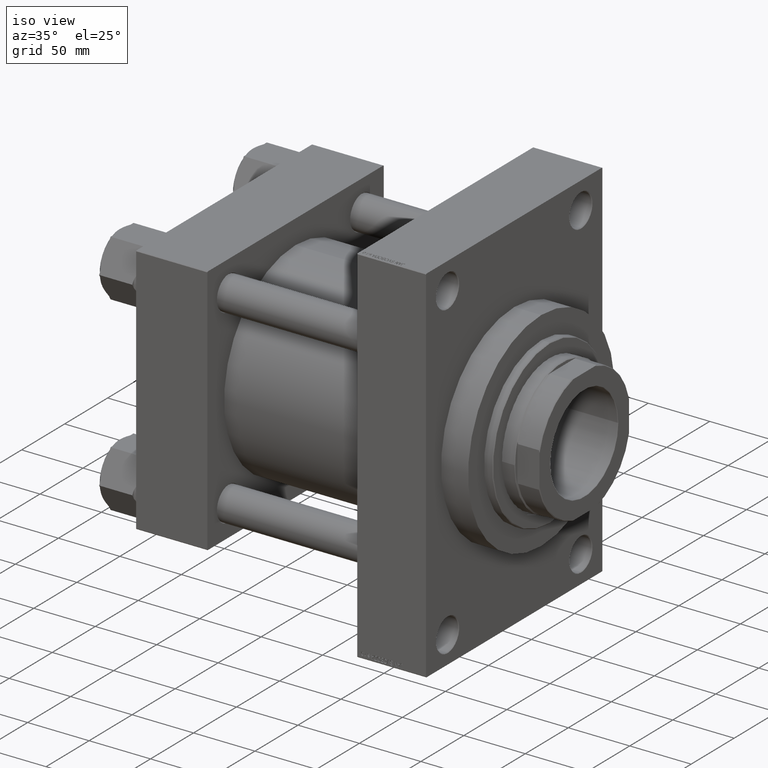
[diagram: clean part render]
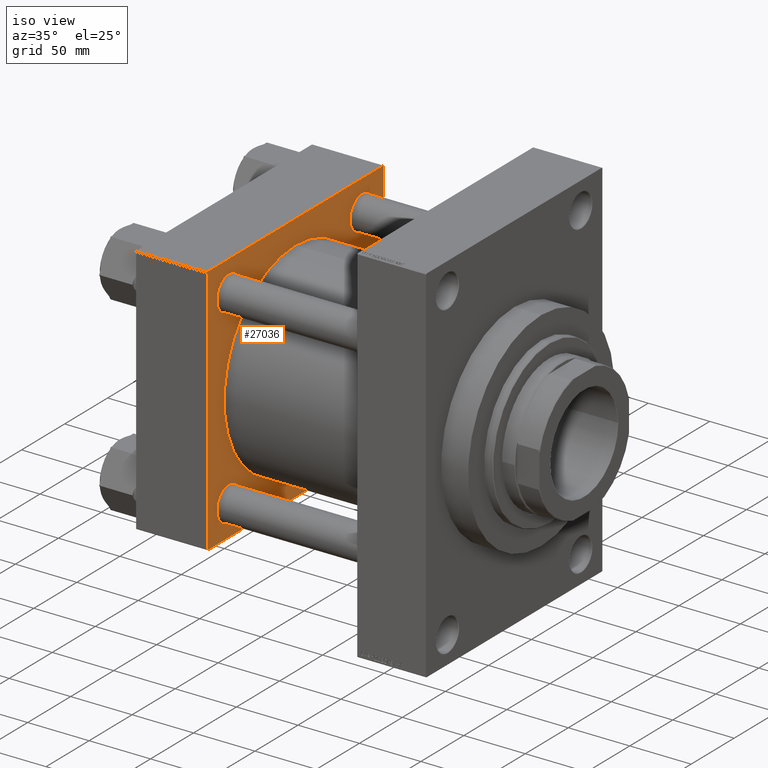
[diagram: same view with one face highlighted and labeled with its STEP entity id]
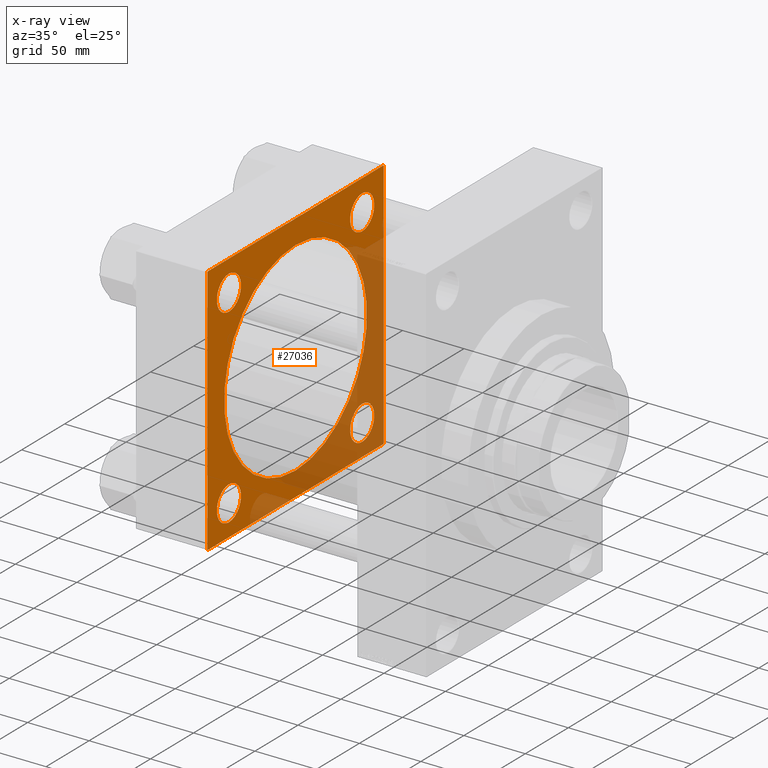
[diagram: x-ray of the same camera — body ghosted, the highlighted face saturated]
A machine part, iso view. The second image highlights one B-rep face of the part: STEP entity #27036.
The next image is the same camera in x-ray: the body ghosted, the highlighted face saturated — about 36% of this face is hidden behind the body in this view.
In plain terms, the highlighted planar face has unit normal (-1, 0, 0).
Its self-contained STEP definition (entity closure, byte-faithful):
#239 = ORIENTED_EDGE ( 'NONE', *, *, #40243, .T. ) ;
#449 = AXIS2_PLACEMENT_3D ( 'NONE', #14522, #43775, #25412 ) ;
#543 = DIRECTION ( 'NONE',  ( 0.000000000000000000, 0.000000000000000000, 1.000000000000000000 ) ) ;
#621 = CIRCLE ( 'NONE', #4474, 13.99999999999973532 ) ;
#744 = ORIENTED_EDGE ( 'NONE', *, *, #3583, .T. ) ;
#903 = VERTEX_POINT ( 'NONE', #47062 ) ;
#979 = AXIS2_PLACEMENT_3D ( 'NONE', #41067, #30203, #40343 ) ;
#1232 = AXIS2_PLACEMENT_3D ( 'NONE', #7531, #29539, #22024 ) ;
#1894 = DIRECTION ( 'NONE',  ( 0.000000000000000000, 0.000000000000000000, -1.000000000000000000 ) ) ;
#1988 = CARTESIAN_POINT ( 'NONE',  ( 58.00000000000000000, 102.0000000000000142, 102.5000000000000284 ) ) ;
#2297 = FACE_BOUND ( 'NONE', #8144, .T. ) ;
#2490 = CARTESIAN_POINT ( 'NONE',  ( 58.00000000000000000, -77.44999999999996021, -77.45000000000003126 ) ) ;
#2969 = CARTESIAN_POINT ( 'NONE',  ( 58.00000000000000000, 77.44999999999998863, 91.44999999999974705 ) ) ;
#3222 = ORIENTED_EDGE ( 'NONE', *, *, #45354, .T. ) ;
#3396 = CARTESIAN_POINT ( 'NONE',  ( 58.00000000000000000, -102.4999999999999716, 102.0000000000000000 ) ) ;
#3583 = EDGE_CURVE ( 'NONE', #31134, #40538, #42324, .T. ) ;
#4474 = AXIS2_PLACEMENT_3D ( 'NONE', #18402, #37734, #543 ) ;
#5196 = AXIS2_PLACEMENT_3D ( 'NONE', #43694, #10589, #9874 ) ;
#5219 = ORIENTED_EDGE ( 'NONE', *, *, #18907, .F. ) ;
#5260 = DIRECTION ( 'NONE',  ( 0.000000000000000000, -1.000000000000000000, -1.353930517835556973E-16 ) ) ;
#5320 = EDGE_CURVE ( 'NONE', #47331, #20429, #43333, .T. ) ;
#5511 = CARTESIAN_POINT ( 'NONE',  ( 58.00000000000000000, 102.5000000000000284, 102.5000000000000284 ) ) ;
#5926 = FACE_BOUND ( 'NONE', #11442, .T. ) ;
#5941 = CARTESIAN_POINT ( 'NONE',  ( 58.00000000000000000, 77.44999999999998863, 63.45000000000028706 ) ) ;
#6085 = DIRECTION ( 'NONE',  ( 0.000000000000000000, -0.7071067811865474617, 0.7071067811865474617 ) ) ;
#6104 = EDGE_CURVE ( 'NONE', #40538, #38216, #41980, .T. ) ;
#6397 = CARTESIAN_POINT ( 'NONE',  ( 58.00000000000000000, 102.5000000000000284, 102.0000000000000142 ) ) ;
#7322 = ORIENTED_EDGE ( 'NONE', *, *, #13113, .T. ) ;
#7510 = CARTESIAN_POINT ( 'NONE',  ( 58.00000000000000000, 77.44999999999998863, -91.44999999999974705 ) ) ;
#7531 = CARTESIAN_POINT ( 'NONE',  ( 58.00000000000000000, 77.44999999999998863, -77.45000000000001705 ) ) ;
#7659 = ORIENTED_EDGE ( 'NONE', *, *, #41336, .T. ) ;
#7727 = VERTEX_POINT ( 'NONE', #2969 ) ;
#7731 = EDGE_CURVE ( 'NONE', #15330, #17853, #43403, .T. ) ;
#7849 = VERTEX_POINT ( 'NONE', #34100 ) ;
#7932 = VECTOR ( 'NONE', #45303, 1000.000000000000114 ) ;
#8013 = CARTESIAN_POINT ( 'NONE',  ( 58.00000000000000000, 102.5000000000000284, -102.4999999999999716 ) ) ;
#8021 = AXIS2_PLACEMENT_3D ( 'NONE', #30787, #30563, #12180 ) ;
#8144 = EDGE_LOOP ( 'NONE', ( #9513, #239 ) ) ;
#8361 = DIRECTION ( 'NONE',  ( 0.000000000000000000, 0.000000000000000000, 1.000000000000000000 ) ) ;
#8595 = DIRECTION ( 'NONE',  ( -1.000000000000000000, 0.000000000000000000, 0.000000000000000000 ) ) ;
#8645 = CIRCLE ( 'NONE', #37214, 13.99999999999973532 ) ;
#8871 = EDGE_CURVE ( 'NONE', #36310, #30076, #21795, .T. ) ;
#9373 = EDGE_LOOP ( 'NONE', ( #5219, #47743 ) ) ;
#9380 = VERTEX_POINT ( 'NONE', #39770 ) ;
#9513 = ORIENTED_EDGE ( 'NONE', *, *, #5320, .T. ) ;
#9874 = DIRECTION ( 'NONE',  ( 0.000000000000000000, 0.000000000000000000, 1.000000000000000000 ) ) ;
#10059 = VERTEX_POINT ( 'NONE', #19888 ) ;
#10178 = VECTOR ( 'NONE', #5260, 1000.000000000000000 ) ;
#10392 = CARTESIAN_POINT ( 'NONE',  ( 58.00000000000000000, -77.44999999999996021, -91.44999999999976126 ) ) ;
#10474 = CARTESIAN_POINT ( 'NONE',  ( 58.00000000000000000, -101.9999999999999432, -102.5000000000000000 ) ) ;
#10589 = DIRECTION ( 'NONE',  ( -1.000000000000000000, 0.000000000000000000, 0.000000000000000000 ) ) ;
#11442 = EDGE_LOOP ( 'NONE', ( #19003, #7659 ) ) ;
#11663 = AXIS2_PLACEMENT_3D ( 'NONE', #15520, #34376, #34614 ) ;
#12114 = LINE ( 'NONE', #8013, #46311 ) ;
#12180 = DIRECTION ( 'NONE',  ( 0.000000000000000000, 0.000000000000000000, 1.000000000000000000 ) ) ;
#12211 = PLANE ( 'NONE',  #13233 ) ;
#12872 = CIRCLE ( 'NONE', #39896, 83.00000000000000000 ) ;
#12899 = EDGE_LOOP ( 'NONE', ( #3222, #27863 ) ) ;
#12977 = CARTESIAN_POINT ( 'NONE',  ( 58.00000000000000000, 102.5000000000000284, 102.5000000000000284 ) ) ;
#13113 = EDGE_CURVE ( 'NONE', #19220, #7849, #30580, .T. ) ;
#13233 = AXIS2_PLACEMENT_3D ( 'NONE', #16297, #16542, #34913 ) ;
#13498 = VERTEX_POINT ( 'NONE', #7510 ) ;
#13573 = ORIENTED_EDGE ( 'NONE', *, *, #44052, .T. ) ;
#13703 = DIRECTION ( 'NONE',  ( 0.000000000000000000, 0.000000000000000000, 1.000000000000000000 ) ) ;
#14522 = CARTESIAN_POINT ( 'NONE',  ( 58.00000000000000000, -77.44999999999996021, 77.45000000000003126 ) ) ;
#15330 = VERTEX_POINT ( 'NONE', #21124 ) ;
#15495 = VECTOR ( 'NONE', #26939, 1000.000000000000000 ) ;
#15504 = CARTESIAN_POINT ( 'NONE',  ( 58.00000000000000000, -101.9999999999999147, 102.5000000000000000 ) ) ;
#15520 = CARTESIAN_POINT ( 'NONE',  ( 58.00000000000000000, -77.44999999999996021, 77.45000000000003126 ) ) ;
#15876 = CIRCLE ( 'NONE', #1232, 13.99999999999973532 ) ;
#16297 = CARTESIAN_POINT ( 'NONE',  ( 58.00000000000000000, 0.000000000000000000, 0.000000000000000000 ) ) ;
#16542 = DIRECTION ( 'NONE',  ( -1.000000000000000000, 0.000000000000000000, 0.000000000000000000 ) ) ;
#16677 = CARTESIAN_POINT ( 'NONE',  ( 58.00000000000000000, 102.0000000000000142, -102.4999999999999716 ) ) ;
#17324 = VECTOR ( 'NONE', #25215, 1000.000000000000114 ) ;
#17853 = VERTEX_POINT ( 'NONE', #10392 ) ;
#18402 = CARTESIAN_POINT ( 'NONE',  ( 58.00000000000000000, -77.44999999999996021, -77.45000000000003126 ) ) ;
#18761 = ORIENTED_EDGE ( 'NONE', *, *, #36921, .T. ) ;
#18907 = EDGE_CURVE ( 'NONE', #30076, #36310, #12872, .T. ) ;
#19003 = ORIENTED_EDGE ( 'NONE', *, *, #27637, .T. ) ;
#19220 = VERTEX_POINT ( 'NONE', #16677 ) ;
#19229 = LINE ( 'NONE', #20175, #26873 ) ;
#19871 = EDGE_CURVE ( 'NONE', #38216, #43697, #19229, .T. ) ;
#19888 = CARTESIAN_POINT ( 'NONE',  ( 58.00000000000000000, -101.9999999999999432, -102.5000000000000000 ) ) ;
#19920 = FACE_OUTER_BOUND ( 'NONE', #20727, .T. ) ;
#20175 = CARTESIAN_POINT ( 'NONE',  ( 58.00000000000000000, -102.4999999999999716, 102.0000000000000000 ) ) ;
#20262 = EDGE_CURVE ( 'NONE', #19220, #10059, #12114, .T. ) ;
#20429 = VERTEX_POINT ( 'NONE', #40854 ) ;
#20727 = EDGE_LOOP ( 'NONE', ( #44748, #7322, #41188, #744, #25218, #39647, #27212, #46475 ) ) ;
#21124 = CARTESIAN_POINT ( 'NONE',  ( 58.00000000000000000, -77.44999999999996021, -63.45000000000030127 ) ) ;
#21795 = CIRCLE ( 'NONE', #979, 83.00000000000000000 ) ;
#22024 = DIRECTION ( 'NONE',  ( 0.000000000000000000, 0.000000000000000000, 1.000000000000000000 ) ) ;
#22555 = AXIS2_PLACEMENT_3D ( 'NONE', #2490, #24236, #32681 ) ;
#23719 = CIRCLE ( 'NONE', #5196, 13.99999999999973532 ) ;
#23877 = LINE ( 'NONE', #5511, #28296 ) ;
#24168 = CARTESIAN_POINT ( 'NONE',  ( 58.00000000000000000, 102.0000000000000142, 102.5000000000000284 ) ) ;
#24236 = DIRECTION ( 'NONE',  ( -1.000000000000000000, 0.000000000000000000, 0.000000000000000000 ) ) ;
#25215 = DIRECTION ( 'NONE',  ( 0.000000000000000000, 0.7071067811865474617, -0.7071067811865474617 ) ) ;
#25218 = ORIENTED_EDGE ( 'NONE', *, *, #6104, .T. ) ;
#25392 = EDGE_CURVE ( 'NONE', #43697, #9380, #43875, .T. ) ;
#25412 = DIRECTION ( 'NONE',  ( 0.000000000000000000, 0.000000000000000000, 1.000000000000000000 ) ) ;
#26873 = VECTOR ( 'NONE', #37843, 1000.000000000000114 ) ;
#26939 = DIRECTION ( 'NONE',  ( 0.000000000000000000, -1.353930517835556973E-16, -1.000000000000000000 ) ) ;
#27036 = ADVANCED_FACE ( 'NONE', ( #46258, #5926, #2297, #34675, #31056, #19920 ), #12211, .F. ) ;
#27187 = CARTESIAN_POINT ( 'NONE',  ( 57.99999999999999289, -2.602085213965210642E-15, 83.00000000000000000 ) ) ;
#27212 = ORIENTED_EDGE ( 'NONE', *, *, #25392, .T. ) ;
#27637 = EDGE_CURVE ( 'NONE', #13498, #903, #8645, .T. ) ;
#27863 = ORIENTED_EDGE ( 'NONE', *, *, #7731, .T. ) ;
#28296 = VECTOR ( 'NONE', #1894, 1000.000000000000000 ) ;
#29539 = DIRECTION ( 'NONE',  ( -1.000000000000000000, 0.000000000000000000, 0.000000000000000000 ) ) ;
#30076 = VERTEX_POINT ( 'NONE', #27187 ) ;
#30203 = DIRECTION ( 'NONE',  ( 1.000000000000000000, -0.000000000000000000, -0.000000000000000000 ) ) ;
#30563 = DIRECTION ( 'NONE',  ( -1.000000000000000000, 0.000000000000000000, 0.000000000000000000 ) ) ;
#30577 = CARTESIAN_POINT ( 'NONE',  ( 58.00000000000000000, -102.4999999999999716, 102.5000000000000000 ) ) ;
#30580 = LINE ( 'NONE', #34660, #7932 ) ;
#30787 = CARTESIAN_POINT ( 'NONE',  ( 58.00000000000000000, 77.44999999999998863, 77.45000000000001705 ) ) ;
#31056 = FACE_BOUND ( 'NONE', #9373, .T. ) ;
#31134 = VERTEX_POINT ( 'NONE', #6397 ) ;
#32087 = CARTESIAN_POINT ( 'NONE',  ( 57.99999999999999289, -2.602085213965210642E-15, 0.000000000000000000 ) ) ;
#32681 = DIRECTION ( 'NONE',  ( 0.000000000000000000, 0.000000000000000000, 1.000000000000000000 ) ) ;
#34100 = CARTESIAN_POINT ( 'NONE',  ( 58.00000000000000000, 102.5000000000000284, -101.9999999999999147 ) ) ;
#34376 = DIRECTION ( 'NONE',  ( -1.000000000000000000, 0.000000000000000000, 0.000000000000000000 ) ) ;
#34614 = DIRECTION ( 'NONE',  ( 0.000000000000000000, 0.000000000000000000, 1.000000000000000000 ) ) ;
#34660 = CARTESIAN_POINT ( 'NONE',  ( 58.00000000000000000, 102.5000000000000284, -101.9999999999999716 ) ) ;
#34675 = FACE_BOUND ( 'NONE', #43835, .T. ) ;
#34913 = DIRECTION ( 'NONE',  ( 0.000000000000000000, 0.000000000000000000, 1.000000000000000000 ) ) ;
#35216 = DIRECTION ( 'NONE',  ( 1.000000000000000000, -0.000000000000000000, -0.000000000000000000 ) ) ;
#35370 = LINE ( 'NONE', #10474, #17324 ) ;
#36289 = CARTESIAN_POINT ( 'NONE',  ( 57.99999999999999289, 7.562483218957819277E-15, -83.00000000000000000 ) ) ;
#36310 = VERTEX_POINT ( 'NONE', #36289 ) ;
#36692 = CIRCLE ( 'NONE', #449, 13.99999999999973532 ) ;
#36921 = EDGE_CURVE ( 'NONE', #7727, #42125, #43518, .T. ) ;
#37214 = AXIS2_PLACEMENT_3D ( 'NONE', #37610, #8595, #8361 ) ;
#37254 = DIRECTION ( 'NONE',  ( 0.000000000000000000, -1.000000000000000000, -1.353930517835556727E-16 ) ) ;
#37610 = CARTESIAN_POINT ( 'NONE',  ( 58.00000000000000000, 77.44999999999998863, -77.45000000000001705 ) ) ;
#37734 = DIRECTION ( 'NONE',  ( -1.000000000000000000, 0.000000000000000000, 0.000000000000000000 ) ) ;
#37843 = DIRECTION ( 'NONE',  ( -0.000000000000000000, -0.7071067811865474617, -0.7071067811865474617 ) ) ;
#38066 = EDGE_CURVE ( 'NONE', #9380, #10059, #35370, .T. ) ;
#38216 = VERTEX_POINT ( 'NONE', #15504 ) ;
#39402 = VECTOR ( 'NONE', #6085, 1000.000000000000114 ) ;
#39647 = ORIENTED_EDGE ( 'NONE', *, *, #19871, .T. ) ;
#39770 = CARTESIAN_POINT ( 'NONE',  ( 58.00000000000000000, -102.5000000000000000, -101.9999999999998863 ) ) ;
#39896 = AXIS2_PLACEMENT_3D ( 'NONE', #32087, #35216, #13703 ) ;
#40243 = EDGE_CURVE ( 'NONE', #20429, #47331, #36692, .T. ) ;
#40343 = DIRECTION ( 'NONE',  ( 0.000000000000000000, 0.000000000000000000, 1.000000000000000000 ) ) ;
#40538 = VERTEX_POINT ( 'NONE', #24168 ) ;
#40854 = CARTESIAN_POINT ( 'NONE',  ( 58.00000000000000000, -77.44999999999996021, 91.44999999999976126 ) ) ;
#41067 = CARTESIAN_POINT ( 'NONE',  ( 57.99999999999999289, -2.602085213965210642E-15, 0.000000000000000000 ) ) ;
#41188 = ORIENTED_EDGE ( 'NONE', *, *, #41809, .F. ) ;
#41336 = EDGE_CURVE ( 'NONE', #903, #13498, #15876, .T. ) ;
#41809 = EDGE_CURVE ( 'NONE', #31134, #7849, #23877, .T. ) ;
#41980 = LINE ( 'NONE', #12977, #10178 ) ;
#42125 = VERTEX_POINT ( 'NONE', #5941 ) ;
#42324 = LINE ( 'NONE', #1988, #39402 ) ;
#43333 = CIRCLE ( 'NONE', #11663, 13.99999999999973532 ) ;
#43403 = CIRCLE ( 'NONE', #22555, 13.99999999999973532 ) ;
#43518 = CIRCLE ( 'NONE', #8021, 13.99999999999973532 ) ;
#43694 = CARTESIAN_POINT ( 'NONE',  ( 58.00000000000000000, 77.44999999999998863, 77.45000000000001705 ) ) ;
#43697 = VERTEX_POINT ( 'NONE', #3396 ) ;
#43775 = DIRECTION ( 'NONE',  ( -1.000000000000000000, 0.000000000000000000, 0.000000000000000000 ) ) ;
#43835 = EDGE_LOOP ( 'NONE', ( #13573, #18761 ) ) ;
#43875 = LINE ( 'NONE', #30577, #15495 ) ;
#43920 = CARTESIAN_POINT ( 'NONE',  ( 58.00000000000000000, -77.44999999999996021, 63.45000000000030127 ) ) ;
#44052 = EDGE_CURVE ( 'NONE', #42125, #7727, #23719, .T. ) ;
#44748 = ORIENTED_EDGE ( 'NONE', *, *, #20262, .F. ) ;
#45303 = DIRECTION ( 'NONE',  ( -0.000000000000000000, 0.7071067811865474617, 0.7071067811865474617 ) ) ;
#45354 = EDGE_CURVE ( 'NONE', #17853, #15330, #621, .T. ) ;
#46258 = FACE_BOUND ( 'NONE', #12899, .T. ) ;
#46311 = VECTOR ( 'NONE', #37254, 1000.000000000000000 ) ;
#46475 = ORIENTED_EDGE ( 'NONE', *, *, #38066, .T. ) ;
#47062 = CARTESIAN_POINT ( 'NONE',  ( 58.00000000000000000, 77.44999999999998863, -63.45000000000028706 ) ) ;
#47331 = VERTEX_POINT ( 'NONE', #43920 ) ;
#47743 = ORIENTED_EDGE ( 'NONE', *, *, #8871, .F. ) ;